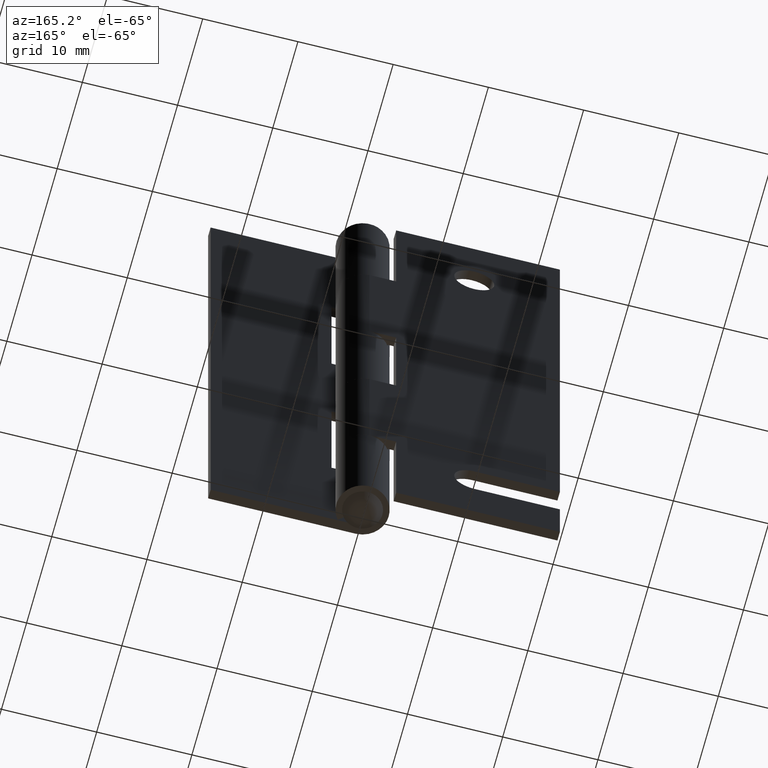
[diagram: clean part render]
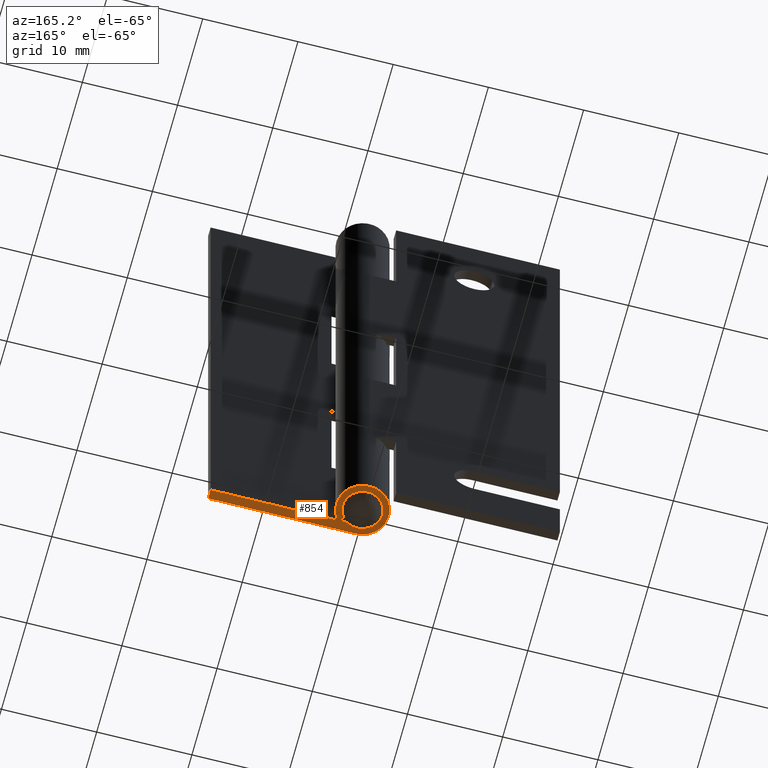
[diagram: same view with one face highlighted and labeled with its STEP entity id]
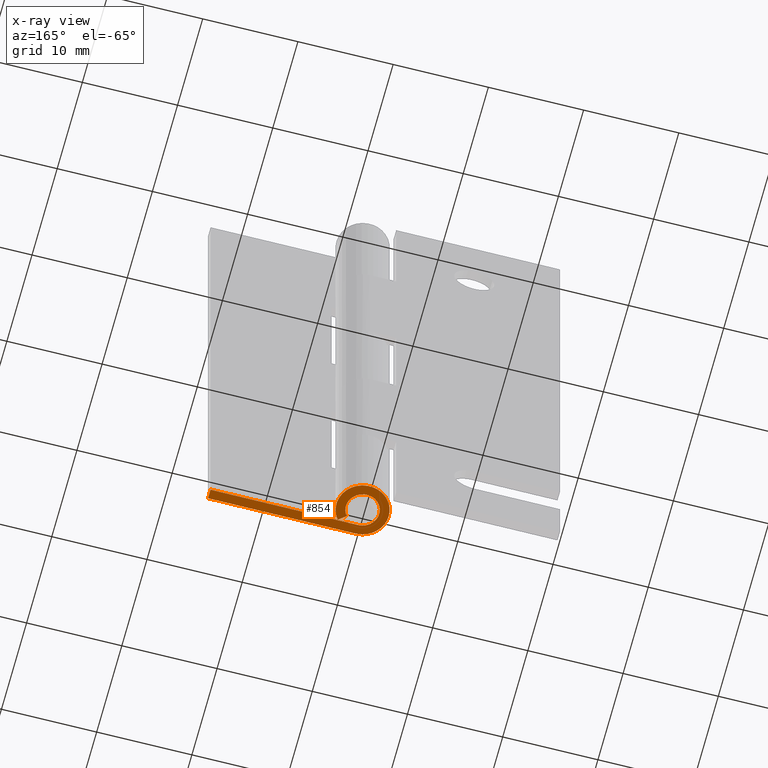
[diagram: x-ray of the same camera — body ghosted, the highlighted face saturated]
A machine part, auxiliary view. The second image highlights one B-rep face of the part: STEP entity #854.
The next image is the same camera in x-ray: the body ghosted, the highlighted face saturated — about 0% of this face is hidden behind the body in this view.
In plain terms, the highlighted face is a freeform B-spline surface patch.
Its self-contained STEP definition (entity closure, byte-faithful):
#777=CARTESIAN_POINT('',(-3.658938771073236,-3.024220930003766,0.0));
#778=CARTESIAN_POINT('',(16.411461945931450,-3.024220930003766,0.0));
#779=CARTESIAN_POINT('',(-3.658938771073236,3.014129798861696,0.0));
#780=CARTESIAN_POINT('',(16.411461945931450,3.014129798861696,0.0));
#781=B_SPLINE_SURFACE_WITH_KNOTS('',1,1,((#777,#779),(#778,#780)),.UNSPECIFIED.,.F.,.F.,.U.,(2,2),(2,2),(0.0,20.070400717004691),(0.0,6.038350728865463),.UNSPECIFIED.);
#782=CARTESIAN_POINT('',(0.0,-1.750000000000000,0.0));
#783=VERTEX_POINT('',#782);
#784=CARTESIAN_POINT('',(1.375561493168370,-1.081818181818174,0.0));
#785=VERTEX_POINT('',#784);
#786=CARTESIAN_POINT('',(0.0,-1.750000000000000,0.0));
#787=CARTESIAN_POINT('',(-1.393156968719432,-1.750000000000000,0.0));
#788=CARTESIAN_POINT('',(-1.705462231859897,-0.392299089598052,0.0));
#789=CARTESIAN_POINT('',(-2.017767495000362,0.965401820803896,0.0));
#790=CARTESIAN_POINT('',(-0.764630035317142,1.574115913486331,0.0));
#791=CARTESIAN_POINT('',(0.488507424366078,2.182830006168766,0.0));
#792=CARTESIAN_POINT('',(1.362646612735049,1.098041077920902,0.0));
#793=CARTESIAN_POINT('',(2.236785801104022,0.013252149673039,0.0));
#794=CARTESIAN_POINT('',(1.375561493168370,-1.081818181818174,0.0));
#802=(BOUNDED_CURVE()B_SPLINE_CURVE(2,(#786,#787,#788,#789,#790,#791,#792,#793,#794),.UNSPECIFIED.,.F.,.U.)B_SPLINE_CURVE_WITH_KNOTS((3,2,2,2,3),(0.0,0.250000000000000,0.500000000000000,0.750000000000000,1.0),.UNSPECIFIED.)CURVE()GEOMETRIC_REPRESENTATION_ITEM()RATIONAL_B_SPLINE_CURVE((1.0,0.782358903682237,1.0,0.782358903682237,1.0,0.782358903682237,1.0,0.782358903682237,1.0))REPRESENTATION_ITEM(''));
#803=EDGE_CURVE('',#783,#785,#802,.T.);
#804=ORIENTED_EDGE('',*,*,#803,.F.);
#805=CARTESIAN_POINT('',(15.500000000000000,-1.750000000000000,0.0));
#806=VERTEX_POINT('',#805);
#807=CARTESIAN_POINT('',(0.0,-1.750000000000000,0.0));
#808=CARTESIAN_POINT('',(15.500000000000000,-1.750000000000000,0.0));
#809=QUASI_UNIFORM_CURVE('',1,(#807,#808),.UNSPECIFIED.,.F.,.U.);
#810=EDGE_CURVE('',#783,#806,#809,.T.);
#811=ORIENTED_EDGE('',*,*,#810,.T.);
#812=CARTESIAN_POINT('',(15.500000000000000,-2.750000000000000,0.0));
#813=VERTEX_POINT('',#812);
#814=CARTESIAN_POINT('',(15.500000000000000,-1.750000000000000,0.0));
#815=CARTESIAN_POINT('',(15.500000000000000,-2.750000000000000,0.0));
#816=QUASI_UNIFORM_CURVE('',1,(#814,#815),.UNSPECIFIED.,.F.,.U.);
#817=EDGE_CURVE('',#806,#813,#816,.T.);
#818=ORIENTED_EDGE('',*,*,#817,.T.);
#819=CARTESIAN_POINT('',(0.0,-2.750000000000000,0.0));
#820=VERTEX_POINT('',#819);
#821=CARTESIAN_POINT('',(15.500000000000000,-2.750000000000000,0.0));
#822=CARTESIAN_POINT('',(0.0,-2.750000000000000,0.0));
#823=QUASI_UNIFORM_CURVE('',1,(#821,#822),.UNSPECIFIED.,.F.,.U.);
#824=EDGE_CURVE('',#813,#820,#823,.T.);
#825=ORIENTED_EDGE('',*,*,#824,.T.);
#826=CARTESIAN_POINT('',(2.161596632121730,-1.700000000000000,0.0));
#827=VERTEX_POINT('',#826);
#828=CARTESIAN_POINT('',(0.0,-2.750000000000000,0.0));
#829=CARTESIAN_POINT('',(-2.189246665130535,-2.750000000000000,0.0));
#830=CARTESIAN_POINT('',(-2.680012078636981,-0.616469997939795,0.0));
#831=CARTESIAN_POINT('',(-3.170777492143425,1.517060004120411,0.0));
#832=CARTESIAN_POINT('',(-1.201561484069792,2.473610721192807,0.0));
#833=CARTESIAN_POINT('',(0.767654524003843,3.430161438265204,0.0));
#834=CARTESIAN_POINT('',(2.141301820012224,1.725493122447127,0.0));
#835=CARTESIAN_POINT('',(3.514949116020605,0.020824806629051,0.0));
#836=CARTESIAN_POINT('',(2.161596632121729,-1.700000000000000,0.0));
#844=(BOUNDED_CURVE()B_SPLINE_CURVE(2,(#828,#829,#830,#831,#832,#833,#834,#835,#836),.UNSPECIFIED.,.F.,.U.)B_SPLINE_CURVE_WITH_KNOTS((3,2,2,2,3),(0.0,0.250000000000000,0.500000000000000,0.750000000000000,1.0),.UNSPECIFIED.)CURVE()GEOMETRIC_REPRESENTATION_ITEM()RATIONAL_B_SPLINE_CURVE((1.0,0.782358903682237,1.0,0.782358903682237,1.0,0.782358903682237,1.0,0.782358903682237,1.0))REPRESENTATION_ITEM(''));
#845=EDGE_CURVE('',#820,#827,#844,.T.);
#846=ORIENTED_EDGE('',*,*,#845,.T.);
#847=CARTESIAN_POINT('',(2.161596632121730,-1.700000000000000,0.0));
#848=CARTESIAN_POINT('',(1.375561493168370,-1.081818181818174,0.0));
#849=QUASI_UNIFORM_CURVE('',1,(#847,#848),.UNSPECIFIED.,.F.,.U.);
#850=EDGE_CURVE('',#827,#785,#849,.T.);
#851=ORIENTED_EDGE('',*,*,#850,.T.);
#852=EDGE_LOOP('',(#804,#811,#818,#825,#846,#851));
#853=FACE_OUTER_BOUND('',#852,.T.);
#854=ADVANCED_FACE('',(#853),#781,.F.);